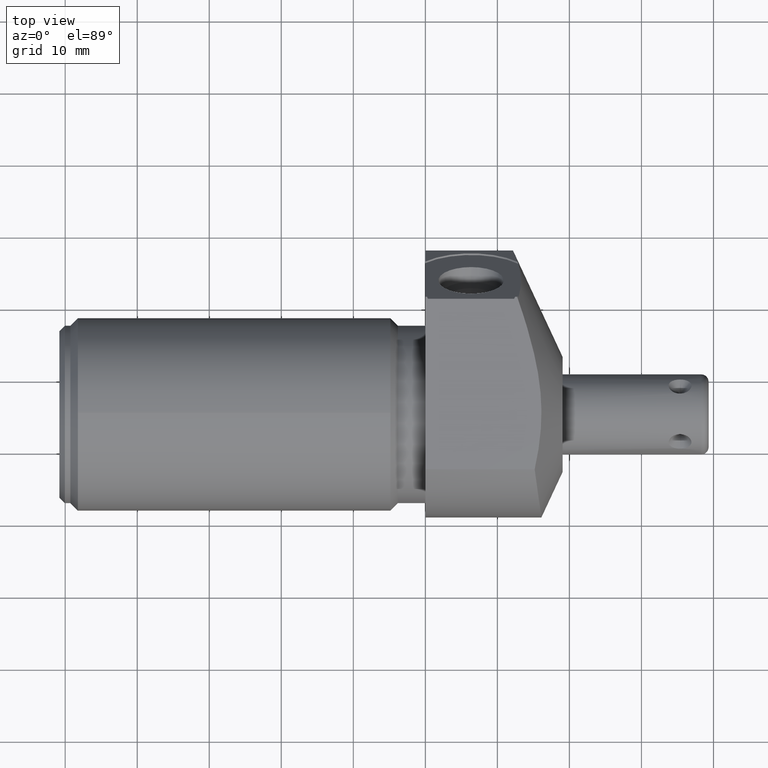
[diagram: clean part render]
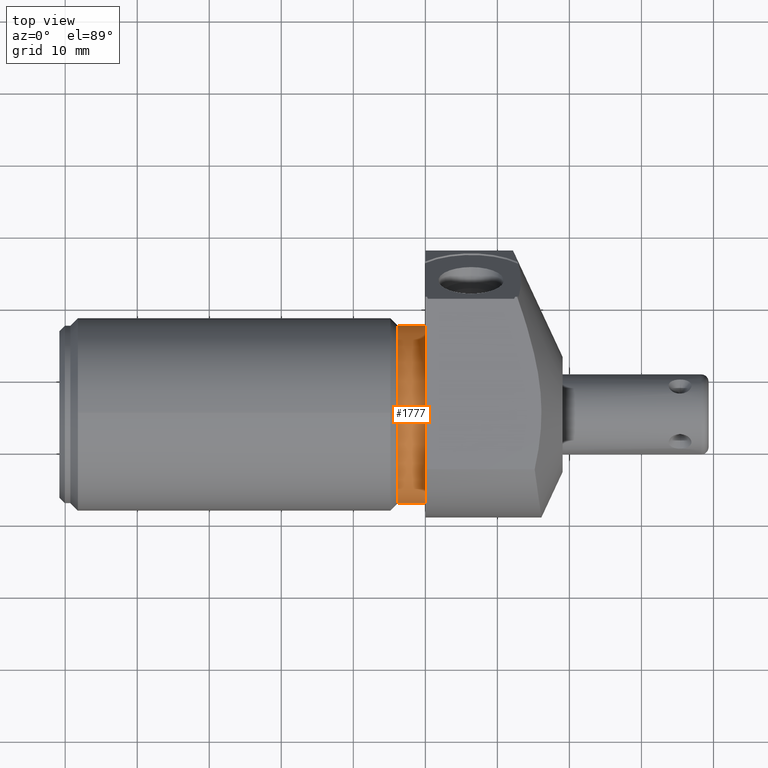
[diagram: same view with one face highlighted and labeled with its STEP entity id]
A machine part, top view. The second image highlights one B-rep face of the part: STEP entity #1777.
In plain terms, the highlighted cylindrical surface (partial cylindrical patch) has radius 12.319 mm, axis along (-1, 0, 0).
Its self-contained STEP definition (entity closure, byte-faithful):
#301=CARTESIAN_POINT('',(0.E0,-1.87E-1,0.E0));
#302=DIRECTION('',(1.E0,0.E0,0.E0));
#303=DIRECTION('',(0.E0,1.E0,0.E0));
#304=AXIS2_PLACEMENT_3D('',#301,#302,#303);
#409=DIRECTION('',(1.E0,0.E0,0.E0));
#410=VECTOR('',#409,1.5E-1);
#411=CARTESIAN_POINT('',(-1.5E-1,2.98E-1,0.E0));
#412=LINE('',#411,#410);
#416=DIRECTION('',(1.E0,0.E0,0.E0));
#417=VECTOR('',#416,1.5E-1);
#418=CARTESIAN_POINT('',(-1.5E-1,-6.72E-1,0.E0));
#419=LINE('',#418,#417);
#423=CARTESIAN_POINT('',(-1.5E-1,-1.87E-1,0.E0));
#424=DIRECTION('',(1.E0,0.E0,0.E0));
#425=DIRECTION('',(0.E0,1.E0,0.E0));
#426=AXIS2_PLACEMENT_3D('',#423,#424,#425);
#1439=CARTESIAN_POINT('',(-1.5E-1,2.98E-1,0.E0));
#1440=CARTESIAN_POINT('',(0.E0,2.98E-1,0.E0));
#1441=VERTEX_POINT('',#1439);
#1442=VERTEX_POINT('',#1440);
#1443=CARTESIAN_POINT('',(-1.5E-1,-6.72E-1,0.E0));
#1444=CARTESIAN_POINT('',(0.E0,-6.72E-1,0.E0));
#1445=VERTEX_POINT('',#1443);
#1446=VERTEX_POINT('',#1444);
#1765=CARTESIAN_POINT('',(9.55E-3,-1.87E-1,0.E0));
#1766=DIRECTION('',(-1.E0,0.E0,0.E0));
#1767=DIRECTION('',(0.E0,1.E0,0.E0));
#1768=AXIS2_PLACEMENT_3D('',#1765,#1766,#1767);
#1769=CYLINDRICAL_SURFACE('',#1768,4.85E-1);
#1770=ORIENTED_EDGE('',*,*,#1755,.T.);
#1771=ORIENTED_EDGE('',*,*,#1745,.T.);
#1772=ORIENTED_EDGE('',*,*,#1759,.F.);
#1774=ORIENTED_EDGE('',*,*,#1773,.F.);
#1775=EDGE_LOOP('',(#1770,#1771,#1772,#1774));
#1776=FACE_OUTER_BOUND('',#1775,.F.);
#1777=ADVANCED_FACE('',(#1776),#1769,.T.);
#305=CIRCLE('',#304,4.85E-1);
#427=CIRCLE('',#426,4.85E-1);
#1745=EDGE_CURVE('',#1442,#1446,#305,.T.);
#1755=EDGE_CURVE('',#1441,#1442,#412,.T.);
#1759=EDGE_CURVE('',#1445,#1446,#419,.T.);
#1773=EDGE_CURVE('',#1441,#1445,#427,.T.);